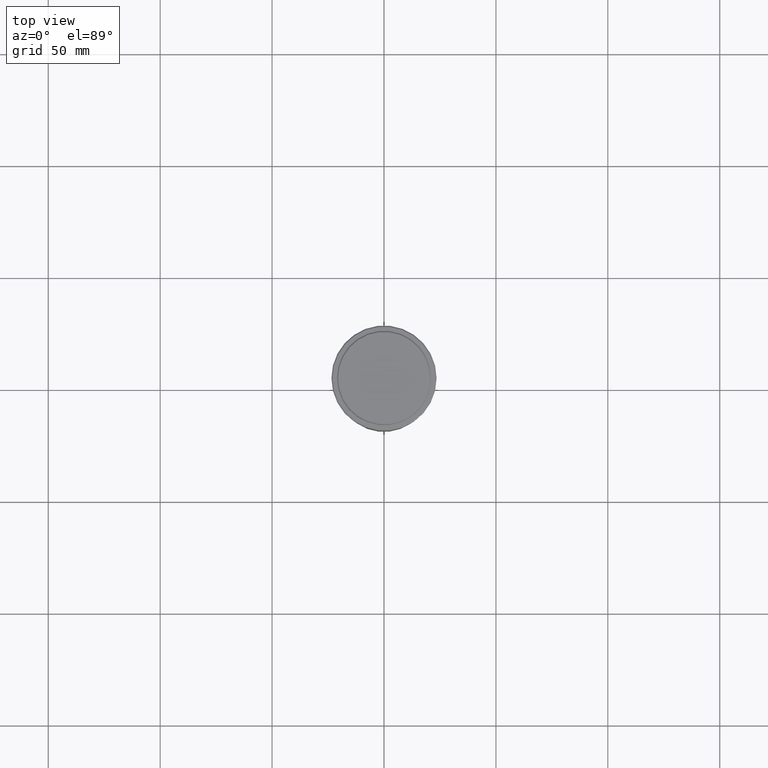
[diagram: clean part render]
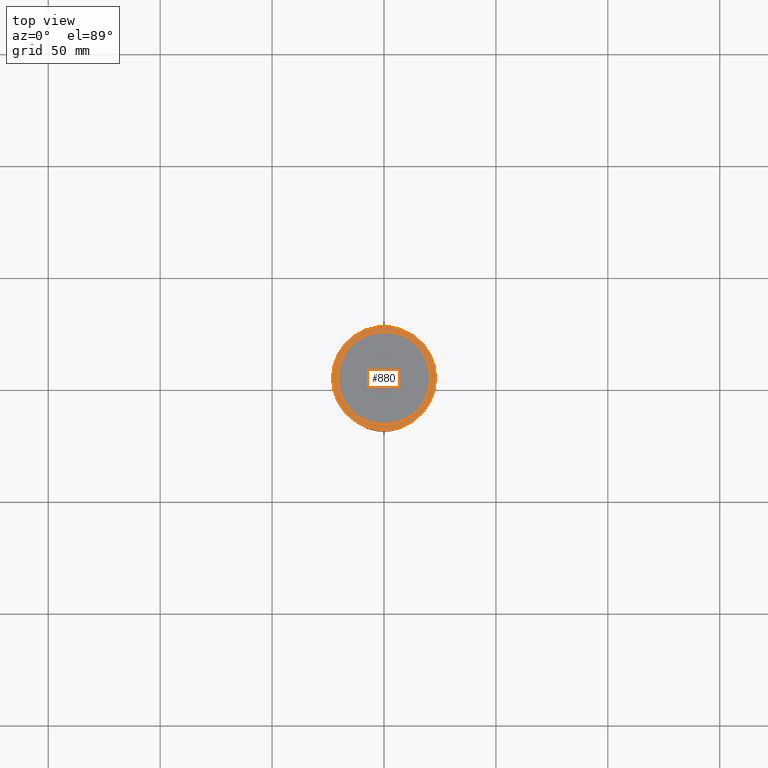
[diagram: same view with one face highlighted and labeled with its STEP entity id]
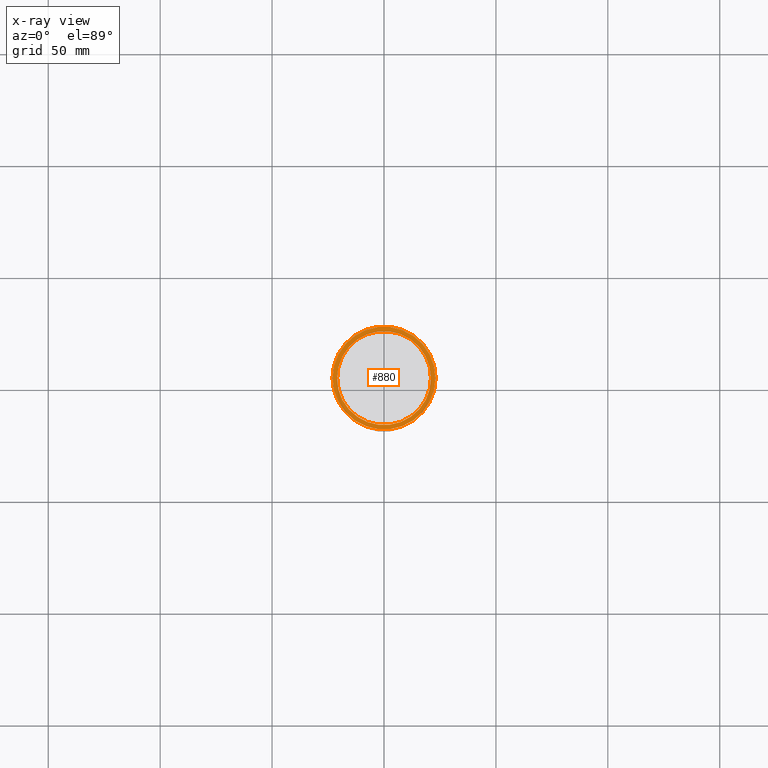
[diagram: x-ray of the same camera — body ghosted, the highlighted face saturated]
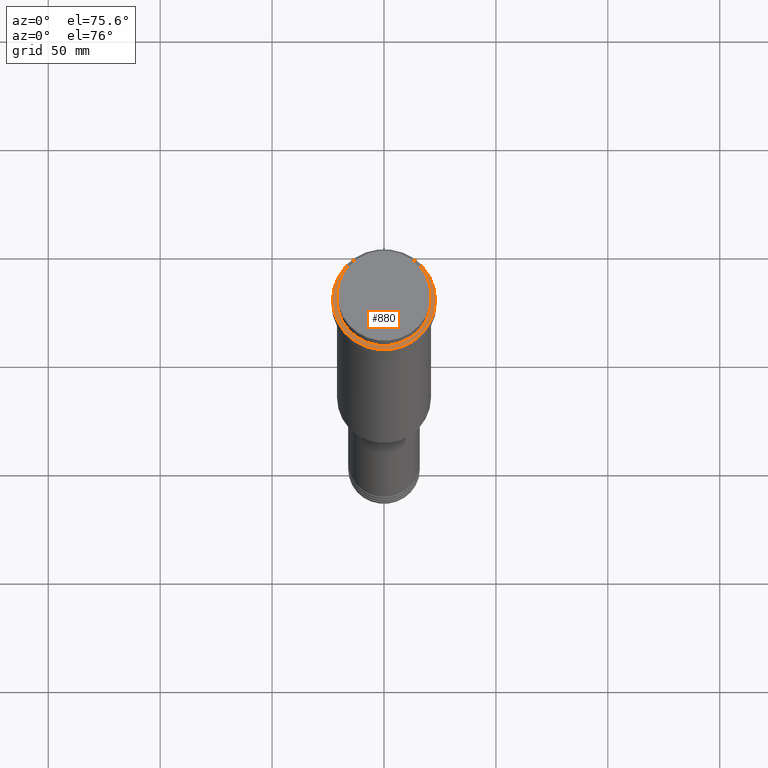
[diagram: same view with one face highlighted and labeled with its STEP entity id]
A machine part, top view. The second image highlights one B-rep face of the part: STEP entity #880.
The next image is the same camera in x-ray: the body ghosted, the highlighted face saturated — about 0% of this face is hidden behind the body in this view.
A second angle (auxiliary view) of the same face is appended — the face is thin or edge-on in the first view.
In plain terms, the highlighted planar face has unit normal (0, -0, 1).
Its self-contained STEP definition (entity closure, byte-faithful):
#62 = AXIS2_PLACEMENT_3D ( 'NONE', #229, #254, #1141 ) ;
#72 = CARTESIAN_POINT ( 'NONE',  ( 20.99999999999999289, 0.000000000000000000, -9.000000000000001776 ) ) ;
#100 = EDGE_CURVE ( 'NONE', #149, #294, #939, .T. ) ;
#117 = EDGE_LOOP ( 'NONE', ( #207, #755 ) ) ;
#120 = DIRECTION ( 'NONE',  ( 1.000000000000000000, 0.000000000000000000, 0.000000000000000000 ) ) ;
#142 = DIRECTION ( 'NONE',  ( 1.000000000000000000, 0.000000000000000000, 0.000000000000000000 ) ) ;
#149 = VERTEX_POINT ( 'NONE', #72 ) ;
#175 = VERTEX_POINT ( 'NONE', #764 ) ;
#207 = ORIENTED_EDGE ( 'NONE', *, *, #818, .T. ) ;
#226 = CIRCLE ( 'NONE', #352, 20.99999999999999289 ) ;
#229 = CARTESIAN_POINT ( 'NONE',  ( 0.000000000000000000, 0.000000000000000000, -9.000000000000001776 ) ) ;
#254 = DIRECTION ( 'NONE',  ( 0.000000000000000000, 0.000000000000000000, -1.000000000000000000 ) ) ;
#294 = VERTEX_POINT ( 'NONE', #418 ) ;
#341 = FACE_BOUND ( 'NONE', #1028, .T. ) ;
#352 = AXIS2_PLACEMENT_3D ( 'NONE', #804, #895, #1247 ) ;
#355 = FACE_OUTER_BOUND ( 'NONE', #117, .T. ) ;
#384 = ORIENTED_EDGE ( 'NONE', *, *, #100, .T. ) ;
#418 = CARTESIAN_POINT ( 'NONE',  ( -20.99999999999999289, 2.571758278209440872E-15, -9.000000000000001776 ) ) ;
#604 = ORIENTED_EDGE ( 'NONE', *, *, #952, .T. ) ;
#612 = EDGE_CURVE ( 'NONE', #175, #881, #1052, .T. ) ;
#651 = DIRECTION ( 'NONE',  ( 0.000000000000000000, -0.000000000000000000, 1.000000000000000000 ) ) ;
#702 = CARTESIAN_POINT ( 'NONE',  ( 0.000000000000000000, 0.000000000000000000, -9.000000000000001776 ) ) ;
#755 = ORIENTED_EDGE ( 'NONE', *, *, #612, .T. ) ;
#764 = CARTESIAN_POINT ( 'NONE',  ( 23.00000000000002487, 2.847303808017597717E-15, -9.000000000000001776 ) ) ;
#791 = AXIS2_PLACEMENT_3D ( 'NONE', #702, #1150, #142 ) ;
#804 = CARTESIAN_POINT ( 'NONE',  ( 0.000000000000000000, 0.000000000000000000, -9.000000000000001776 ) ) ;
#818 = EDGE_CURVE ( 'NONE', #881, #175, #917, .T. ) ;
#876 = PLANE ( 'NONE',  #963 ) ;
#880 = ADVANCED_FACE ( 'NONE', ( #355, #341 ), #876, .T. ) ;
#881 = VERTEX_POINT ( 'NONE', #1408 ) ;
#895 = DIRECTION ( 'NONE',  ( 0.000000000000000000, 0.000000000000000000, -1.000000000000000000 ) ) ;
#917 = CIRCLE ( 'NONE', #1347, 23.00000000000002487 ) ;
#939 = CIRCLE ( 'NONE', #62, 20.99999999999999289 ) ;
#952 = EDGE_CURVE ( 'NONE', #294, #149, #226, .T. ) ;
#963 = AXIS2_PLACEMENT_3D ( 'NONE', #1416, #651, #1075 ) ;
#995 = CARTESIAN_POINT ( 'NONE',  ( 0.000000000000000000, 0.000000000000000000, -9.000000000000001776 ) ) ;
#1028 = EDGE_LOOP ( 'NONE', ( #384, #604 ) ) ;
#1052 = CIRCLE ( 'NONE', #791, 23.00000000000002487 ) ;
#1075 = DIRECTION ( 'NONE',  ( 1.000000000000000000, 0.000000000000000000, 0.000000000000000000 ) ) ;
#1141 = DIRECTION ( 'NONE',  ( 1.000000000000000000, 0.000000000000000000, 0.000000000000000000 ) ) ;
#1150 = DIRECTION ( 'NONE',  ( -0.000000000000000000, -0.000000000000000000, 1.000000000000000000 ) ) ;
#1214 = DIRECTION ( 'NONE',  ( -0.000000000000000000, -0.000000000000000000, 1.000000000000000000 ) ) ;
#1247 = DIRECTION ( 'NONE',  ( 1.000000000000000000, 0.000000000000000000, 0.000000000000000000 ) ) ;
#1347 = AXIS2_PLACEMENT_3D ( 'NONE', #995, #1214, #120 ) ;
#1408 = CARTESIAN_POINT ( 'NONE',  ( -23.00000000000002487, 0.000000000000000000, -9.000000000000001776 ) ) ;
#1416 = CARTESIAN_POINT ( 'NONE',  ( 0.000000000000000000, 20.49999999999999645, -9.000000000000001776 ) ) ;